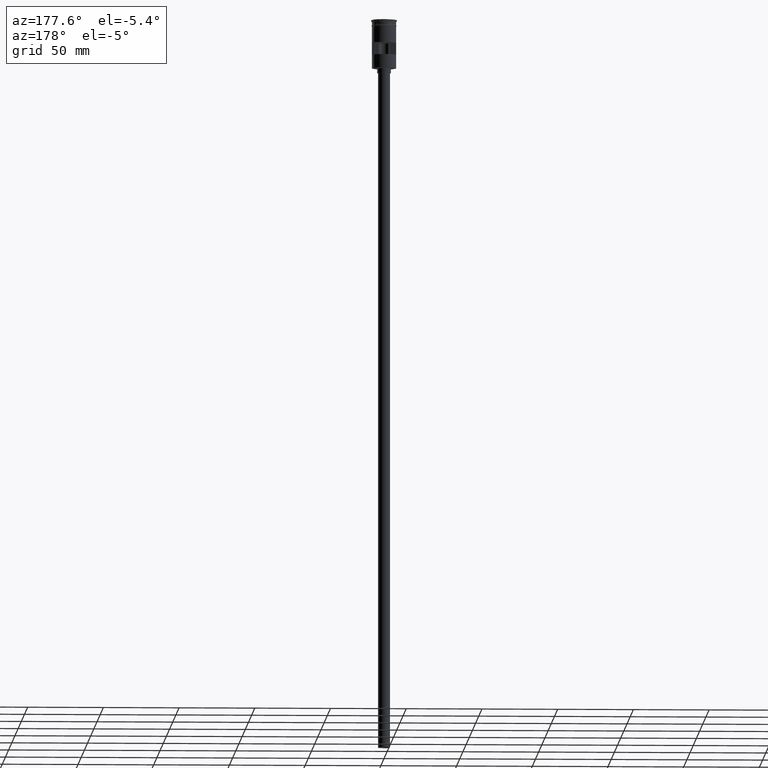
[diagram: clean part render]
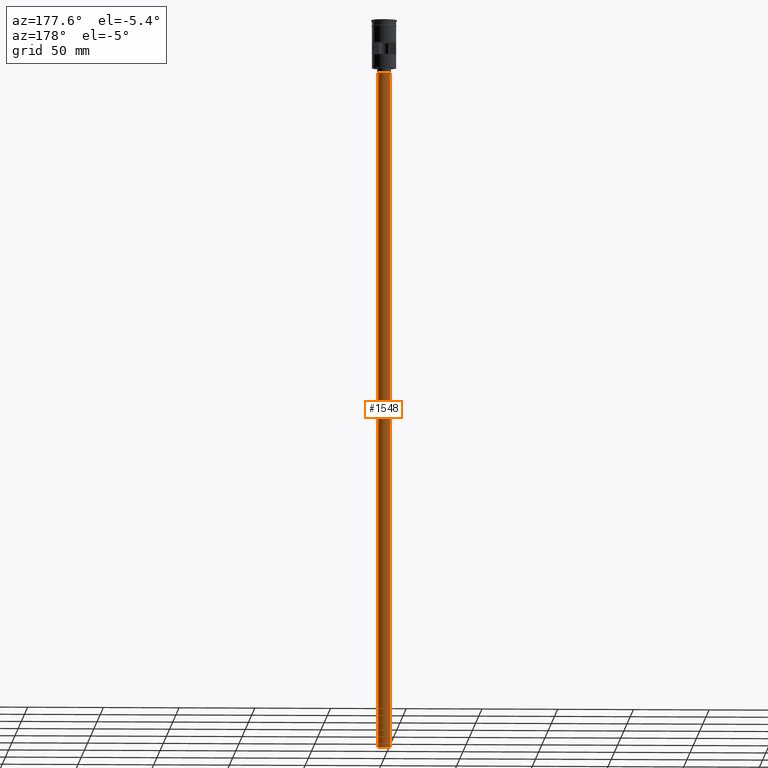
[diagram: same view with one face highlighted and labeled with its STEP entity id]
A machine part, auxiliary view. The second image highlights one B-rep face of the part: STEP entity #1548.
In plain terms, the highlighted cylindrical surface (edge-blend (fillet) strip) has radius 4 mm, axis along (-0, -0, 1).
Its self-contained STEP definition (entity closure, byte-faithful):
#29 = VECTOR ( 'NONE', #1583, 1000.000000000000000 ) ;
#112 = DIRECTION ( 'NONE',  ( 0.000000000000000000, 0.000000000000000000, -1.000000000000000000 ) ) ;
#165 = ORIENTED_EDGE ( 'NONE', *, *, #965, .T. ) ;
#224 = EDGE_CURVE ( 'NONE', #882, #992, #624, .T. ) ;
#382 = EDGE_LOOP ( 'NONE', ( #1254, #392, #165, #1052 ) ) ;
#392 = ORIENTED_EDGE ( 'NONE', *, *, #1334, .T. ) ;
#408 = VERTEX_POINT ( 'NONE', #954 ) ;
#455 = DIRECTION ( 'NONE',  ( -1.000000000000000000, 0.000000000000000000, 0.000000000000000000 ) ) ;
#462 = CARTESIAN_POINT ( 'NONE',  ( 4.000000000000000000, 0.000000000000000000, -482.0000000000000000 ) ) ;
#490 = EDGE_CURVE ( 'NONE', #992, #1285, #1475, .T. ) ;
#523 = DIRECTION ( 'NONE',  ( 0.000000000000000000, 0.000000000000000000, -1.000000000000000000 ) ) ;
#575 = CIRCLE ( 'NONE', #607, 4.000000000000000000 ) ;
#590 = LINE ( 'NONE', #1318, #29 ) ;
#607 = AXIS2_PLACEMENT_3D ( 'NONE', #1345, #112, #455 ) ;
#620 = CARTESIAN_POINT ( 'NONE',  ( 4.000000000000000000, 0.000000000000000000, -482.0000000000000000 ) ) ;
#624 = CIRCLE ( 'NONE', #832, 4.000000000000000000 ) ;
#771 = CYLINDRICAL_SURFACE ( 'NONE', #1596, 4.000000000000000000 ) ;
#832 = AXIS2_PLACEMENT_3D ( 'NONE', #1130, #523, #893 ) ;
#882 = VERTEX_POINT ( 'NONE', #1147 ) ;
#893 = DIRECTION ( 'NONE',  ( -1.000000000000000000, 0.000000000000000000, 0.000000000000000000 ) ) ;
#954 = CARTESIAN_POINT ( 'NONE',  ( -4.000000000000000000, 4.898587196589412829E-16, -35.00000000000000000 ) ) ;
#965 = EDGE_CURVE ( 'NONE', #408, #1285, #575, .T. ) ;
#966 = DIRECTION ( 'NONE',  ( 1.000000000000000000, 0.000000000000000000, 0.000000000000000000 ) ) ;
#992 = VERTEX_POINT ( 'NONE', #462 ) ;
#1052 = ORIENTED_EDGE ( 'NONE', *, *, #490, .F. ) ;
#1109 = FACE_OUTER_BOUND ( 'NONE', #382, .T. ) ;
#1130 = CARTESIAN_POINT ( 'NONE',  ( 0.000000000000000000, 0.000000000000000000, -482.0000000000000000 ) ) ;
#1147 = CARTESIAN_POINT ( 'NONE',  ( -4.000000000000000000, 4.898587196589412829E-16, -482.0000000000000000 ) ) ;
#1188 = CARTESIAN_POINT ( 'NONE',  ( 4.000000000000000000, 0.000000000000000000, -35.00000000000000000 ) ) ;
#1254 = ORIENTED_EDGE ( 'NONE', *, *, #224, .F. ) ;
#1268 = VECTOR ( 'NONE', #1483, 1000.000000000000000 ) ;
#1285 = VERTEX_POINT ( 'NONE', #1188 ) ;
#1318 = CARTESIAN_POINT ( 'NONE',  ( -4.000000000000000000, 4.898587196589412829E-16, -482.0000000000000000 ) ) ;
#1334 = EDGE_CURVE ( 'NONE', #882, #408, #590, .T. ) ;
#1345 = CARTESIAN_POINT ( 'NONE',  ( 0.000000000000000000, 0.000000000000000000, -35.00000000000000000 ) ) ;
#1475 = LINE ( 'NONE', #620, #1268 ) ;
#1483 = DIRECTION ( 'NONE',  ( -0.000000000000000000, -0.000000000000000000, 1.000000000000000000 ) ) ;
#1548 = ADVANCED_FACE ( 'NONE', ( #1109 ), #771, .T. ) ;
#1583 = DIRECTION ( 'NONE',  ( -0.000000000000000000, -0.000000000000000000, 1.000000000000000000 ) ) ;
#1596 = AXIS2_PLACEMENT_3D ( 'NONE', #1604, #1600, #966 ) ;
#1600 = DIRECTION ( 'NONE',  ( -0.000000000000000000, -0.000000000000000000, 1.000000000000000000 ) ) ;
#1604 = CARTESIAN_POINT ( 'NONE',  ( 0.000000000000000000, 0.000000000000000000, -482.0000000000000000 ) ) ;